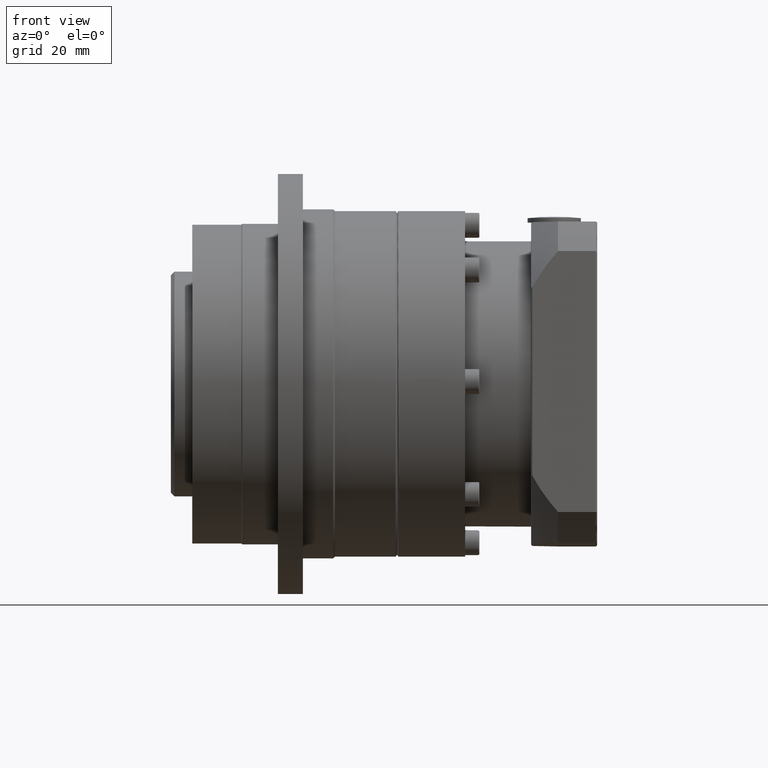
[diagram: clean part render]
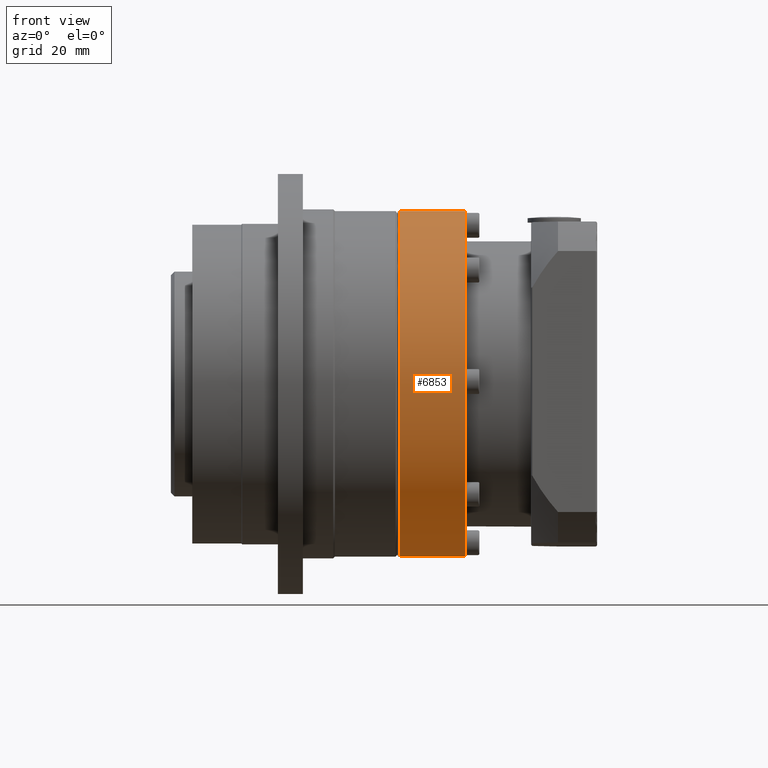
[diagram: same view with one face highlighted and labeled with its STEP entity id]
A machine part, front view. The second image highlights one B-rep face of the part: STEP entity #6853.
In plain terms, the highlighted cylindrical surface (bore or boss wall) has radius 48.5 mm, axis along (1, -0, -0).
Its self-contained STEP definition (entity closure, byte-faithful):
#1310=FACE_BOUND('',#2395,.T.);
#1715=FACE_OUTER_BOUND('',#2394,.T.);
#2394=EDGE_LOOP('',(#5608));
#2395=EDGE_LOOP('',(#5609));
#2906=CIRCLE('',#7645,48.5);
#2911=CIRCLE('',#7652,48.5);
#3444=VERTEX_POINT('',#11745);
#3449=VERTEX_POINT('',#11757);
#4207=EDGE_CURVE('',#3444,#3444,#2906,.T.);
#4212=EDGE_CURVE('',#3449,#3449,#2911,.T.);
#5608=ORIENTED_EDGE('',*,*,#4207,.F.);
#5609=ORIENTED_EDGE('',*,*,#4212,.F.);
#6129=CYLINDRICAL_SURFACE('',#7651,48.5);
#6853=ADVANCED_FACE('',(#1715,#1310),#6129,.T.);
#7645=AXIS2_PLACEMENT_3D('',#11746,#9310,#9311);
#7651=AXIS2_PLACEMENT_3D('',#11756,#9322,#9323);
#7652=AXIS2_PLACEMENT_3D('',#11758,#9324,#9325);
#9310=DIRECTION('center_axis',(1.,-1.30943350213973E-15,-2.20187461450694E-15));
#9311=DIRECTION('ref_axis',(-2.22166771864726E-15,-0.015312937768614,-0.999882750094677));
#9322=DIRECTION('center_axis',(1.,-1.30943350213973E-15,-2.20187461450694E-15));
#9323=DIRECTION('ref_axis',(1.27556280223935E-15,0.999882750094677,-0.015312937768614));
#9324=DIRECTION('center_axis',(-1.,1.30943350213973E-15,2.20187461450694E-15));
#9325=DIRECTION('ref_axis',(-1.27556280223935E-15,-0.999882750094677,0.0153129377686142));
#11745=CARTESIAN_POINT('',(48.7802383984016,-46.577735178168,-12.1762633616562));
#11746=CARTESIAN_POINT('Origin',(48.7802383984015,-95.0720485577598,-11.4335858798784));
#11756=CARTESIAN_POINT('Origin',(39.2802383984015,-95.0720485577598,-11.4335858798784));
#11757=CARTESIAN_POINT('',(30.2802383984016,-46.577735178168,-12.1762633616561));
#11758=CARTESIAN_POINT('Origin',(30.2802383984015,-95.0720485577598,-11.4335858798784));